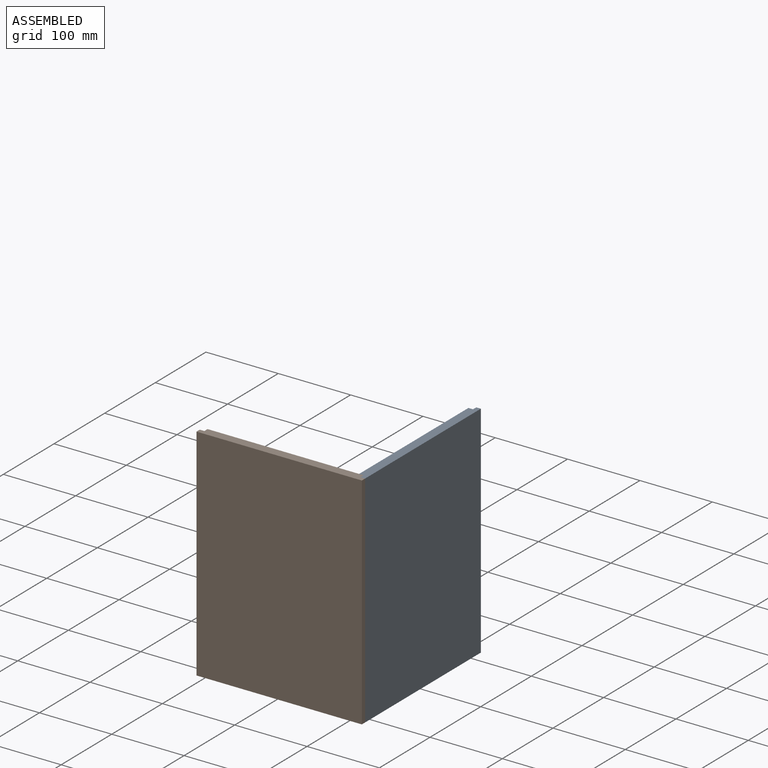
[diagram: assembled view]
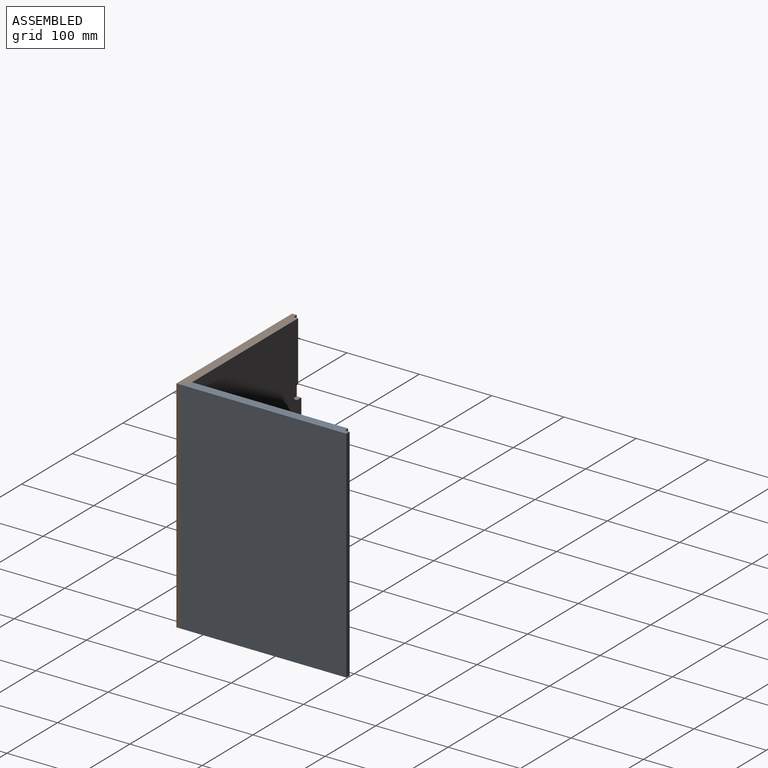
[diagram: assembled view, second angle]
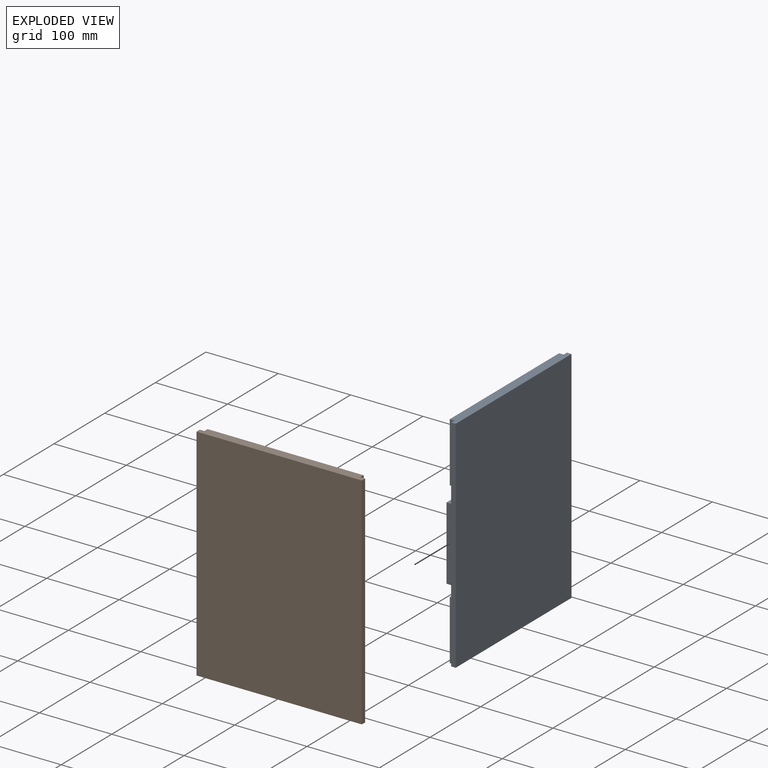
[diagram: exploded view]
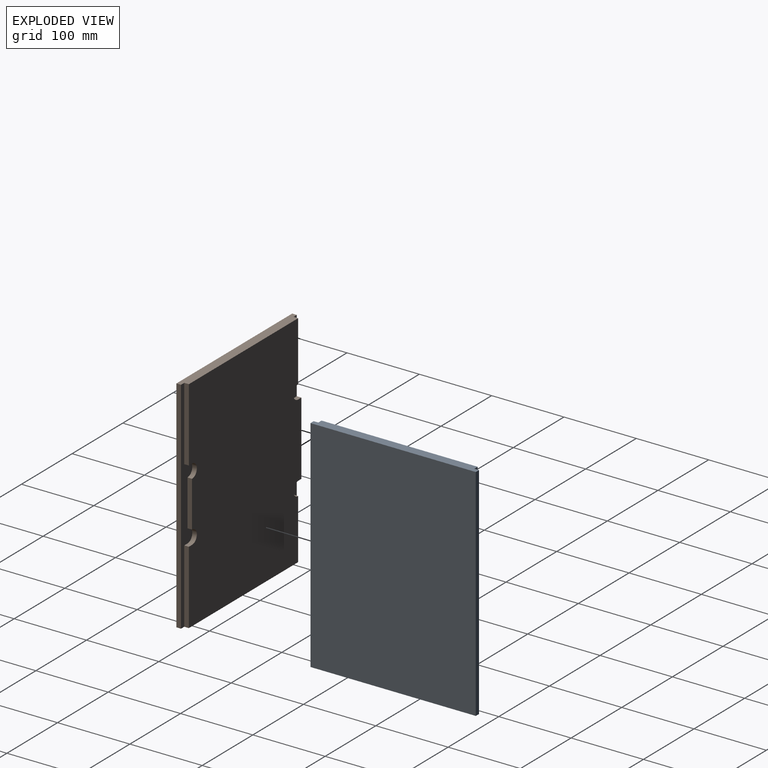
[diagram: exploded view, second angle]
ASSEMBLY  parts=2 mates=3
PART A: 22 faces, bbox 228.6x12.7x304.8 mm
  f0: plane 304.8x12.7mm, normal (-1,0,0), area 2580.6mm2, adj f1,f2,f4,f5,f14,f17,f20,f21
  f1: plane 304.8x222.25mm, normal (0,1,0), area 65236.3mm2, adj f0,f2,f4,f6,f7,f8,f9,f10
  f2: plane 228.6x12.7mm, normal (0,0,-1), area 2822.6mm2, adj f0,f1,f3,f5,f8,f13,f16,f17
  f3: plane 304.8x6.35mm, normal (1,0,0), area 1935.5mm2, adj f2,f4,f5,f13
  f4: plane 228.6x12.7mm, normal (0,0,1), area 2822.6mm2, adj f0,f1,f3,f5,f7,f13,f18,f21
  f5: plane 304.8x228.6mm, normal (0,-1,0), area 69677.3mm2, adj f0,f2,f3,f4
  f6: plane 6.35x6.35mm, normal (0,0,-1), area 40.3mm2, adj f1,f7,f12,f13
  f7: plane 101.6x6.35mm, normal (1,0,0), area 645.2mm2, adj f1,f4,f6,f13
  f8: plane 101.6x6.35mm, normal (1,0,0), area 645.2mm2, adj f1,f2,f9,f13
  f9: plane 6.35x6.35mm, normal (0,0,1), area 40.3mm2, adj f1,f8,f10,f13
  f10: cylinder r=9.53mm len=19.05mm, axis (0,1,0), area 190mm2, adj f1,f9,f11,f13
  f11: plane 63.5x6.35mm, normal (1,0,0), area 403.2mm2, adj f1,f10,f12,f13
  f12: cylinder r=9.53mm len=19.05mm, axis (0,1,0), area 190mm2, adj f1,f6,f11,f13
  f13: plane 304.8x22.23mm, normal (0,1,0), area 2865.7mm2, adj f2,f3,f4,f6,f7,f8,f9,f10
  f14: plane 6.35x6.35mm, normal (0,0,-1), area 40.3mm2, adj f0,f1,f15,f17
  f15: cylinder r=9.53mm len=19.05mm, axis (0,1,0), area 190mm2, adj f1,f14,f16,f17
  f16: plane 82.55x6.35mm, normal (-1,0,0), area 524.2mm2, adj f1,f2,f15,f17
  f17: plane 101.6x15.88mm, normal (0,1,0), area 787.7mm2, adj f0,f2,f14,f15,f16
  f18: plane 82.55x6.35mm, normal (-1,0,0), area 524.2mm2, adj f1,f4,f19,f21
  f19: cylinder r=9.53mm len=19.05mm, axis (0,1,0), area 190mm2, adj f1,f18,f20,f21
  f20: plane 6.35x6.35mm, normal (0,0,1), area 40.3mm2, adj f0,f1,f19,f21
  f21: plane 101.6x15.88mm, normal (0,1,0), area 787.7mm2, adj f0,f4,f18,f19,f20
PART B: same geometry as A
PLACE A rot(axis=(0,0,1),90deg) t=(-187.38,107.04,-6.45)mm
PLACE B t=(-174.68,-115.21,-6.45)mm
MATE planar A.f4 <-> B.f4  axis (0,0,1) through (-180.94,-7.26,298.35)mm
MATE planar A.f0 <-> B.f13  axis (0,-1,0) through (-179.44,-121.56,145.95)mm
MATE planar A.f1 <-> B.f11  axis (-1,0,0) through (-187.38,-121.56,145.95)mm
